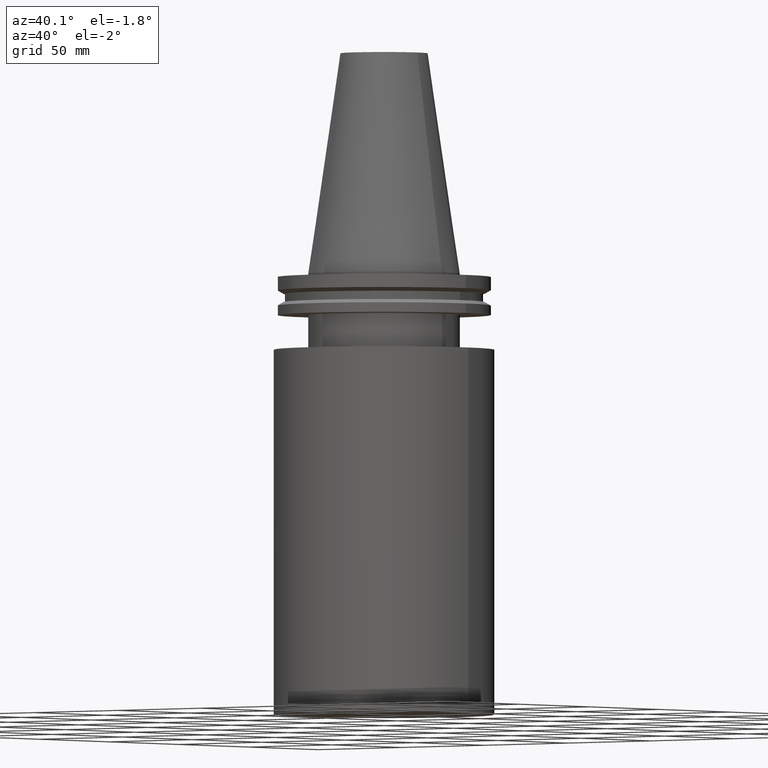
[diagram: clean part render]
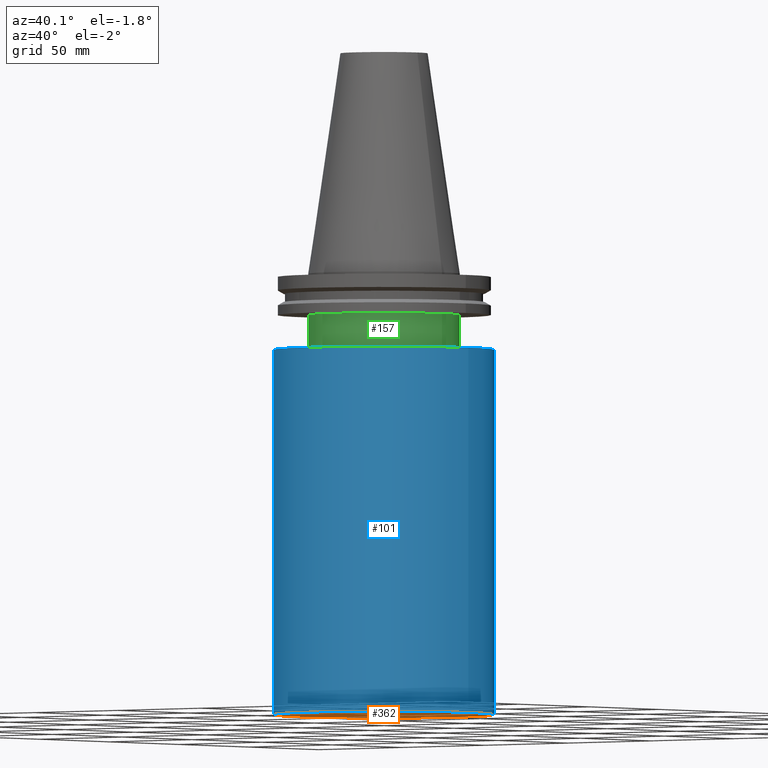
[diagram: same view with three faces highlighted in distinct colors, each labeled with its STEP entity id]
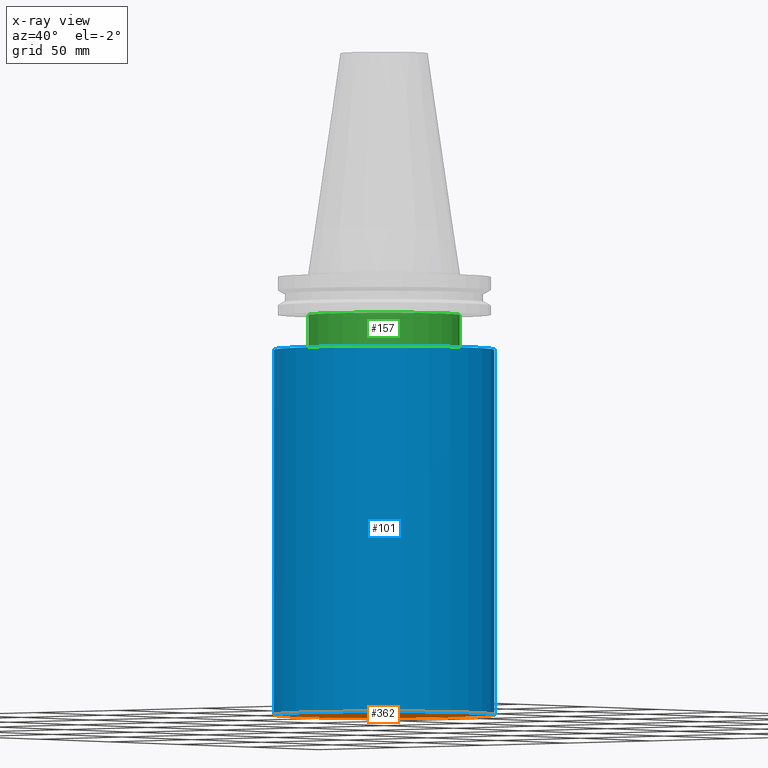
[diagram: x-ray of the same camera — body ghosted, the three highlighted faces saturated]
A machine part, auxiliary view with three faces highlighted in distinct colors.
The next image is the same camera in x-ray (body ghosted, the three faces saturated) — at least one of them is partly hidden behind the body in this view.
Their STEP definitions:

[orange] entity #362 — the highlighted planar face has unit normal (0, -0, 1).
#93 = EDGE_LOOP ( 'NONE', ( #247 ) ) ;
#104 = AXIS2_PLACEMENT_3D ( 'NONE', #243, #361, #202 ) ;
#120 = PLANE ( 'NONE',  #104 ) ;
#147 = AXIS2_PLACEMENT_3D ( 'NONE', #304, #365, #302 ) ;
#158 = VERTEX_POINT ( 'NONE', #372 ) ;
#174 = CIRCLE ( 'NONE', #147, 50.79999999999999716 ) ;
#178 = EDGE_CURVE ( 'NONE', #158, #158, #174, .T. ) ;
#202 = DIRECTION ( 'NONE',  ( 1.000000000000000000, 0.000000000000000000, 0.000000000000000000 ) ) ;
#243 = CARTESIAN_POINT ( 'NONE',  ( 0.000000000000000000, 50.79999999999999716, -203.1999999999999886 ) ) ;
#247 = ORIENTED_EDGE ( 'NONE', *, *, #178, .F. ) ;
#302 = DIRECTION ( 'NONE',  ( 1.000000000000000000, 0.000000000000000000, 0.000000000000000000 ) ) ;
#304 = CARTESIAN_POINT ( 'NONE',  ( 0.000000000000000000, 0.000000000000000000, -203.1999999999999886 ) ) ;
#361 = DIRECTION ( 'NONE',  ( 0.000000000000000000, -0.000000000000000000, 1.000000000000000000 ) ) ;
#362 = ADVANCED_FACE ( 'NONE', ( #393 ), #120, .F. ) ;
#365 = DIRECTION ( 'NONE',  ( -0.000000000000000000, -0.000000000000000000, 1.000000000000000000 ) ) ;
#372 = CARTESIAN_POINT ( 'NONE',  ( 50.79999999999999716, 0.000000000000000000, -203.1999999999999886 ) ) ;
#393 = FACE_OUTER_BOUND ( 'NONE', #93, .T. ) ;

[blue] entity #101 — the highlighted cylindrical surface (bore or boss wall) has radius 50.8 mm, axis along (-0, -0, 1).
#11 = CIRCLE ( 'NONE', #61, 50.79999999999999716 ) ;
#23 = DIRECTION ( 'NONE',  ( 1.000000000000000000, 0.000000000000000000, 0.000000000000000000 ) ) ;
#27 = EDGE_CURVE ( 'NONE', #283, #283, #11, .T. ) ;
#33 = EDGE_LOOP ( 'NONE', ( #190 ) ) ;
#61 = AXIS2_PLACEMENT_3D ( 'NONE', #265, #134, #23 ) ;
#71 = EDGE_LOOP ( 'NONE', ( #347 ) ) ;
#101 = ADVANCED_FACE ( 'NONE', ( #234, #108 ), #357, .T. ) ;
#108 = FACE_OUTER_BOUND ( 'NONE', #71, .T. ) ;
#134 = DIRECTION ( 'NONE',  ( -0.000000000000000000, -0.000000000000000000, 1.000000000000000000 ) ) ;
#147 = AXIS2_PLACEMENT_3D ( 'NONE', #304, #365, #302 ) ;
#158 = VERTEX_POINT ( 'NONE', #372 ) ;
#174 = CIRCLE ( 'NONE', #147, 50.79999999999999716 ) ;
#178 = EDGE_CURVE ( 'NONE', #158, #158, #174, .T. ) ;
#189 = CARTESIAN_POINT ( 'NONE',  ( 50.79999999999999716, 0.000000000000000000, -35.00000000000000000 ) ) ;
#190 = ORIENTED_EDGE ( 'NONE', *, *, #27, .F. ) ;
#192 = DIRECTION ( 'NONE',  ( 1.000000000000000000, 0.000000000000000000, 0.000000000000000000 ) ) ;
#234 = FACE_OUTER_BOUND ( 'NONE', #33, .T. ) ;
#265 = CARTESIAN_POINT ( 'NONE',  ( 0.000000000000000000, 0.000000000000000000, -35.00000000000000000 ) ) ;
#266 = AXIS2_PLACEMENT_3D ( 'NONE', #359, #355, #192 ) ;
#283 = VERTEX_POINT ( 'NONE', #189 ) ;
#302 = DIRECTION ( 'NONE',  ( 1.000000000000000000, 0.000000000000000000, 0.000000000000000000 ) ) ;
#304 = CARTESIAN_POINT ( 'NONE',  ( 0.000000000000000000, 0.000000000000000000, -203.1999999999999886 ) ) ;
#347 = ORIENTED_EDGE ( 'NONE', *, *, #178, .T. ) ;
#355 = DIRECTION ( 'NONE',  ( -0.000000000000000000, -0.000000000000000000, 1.000000000000000000 ) ) ;
#357 = CYLINDRICAL_SURFACE ( 'NONE', #266, 50.79999999999999716 ) ;
#359 = CARTESIAN_POINT ( 'NONE',  ( 0.000000000000000000, 0.000000000000000000, 0.000000000000000000 ) ) ;
#365 = DIRECTION ( 'NONE',  ( -0.000000000000000000, -0.000000000000000000, 1.000000000000000000 ) ) ;
#372 = CARTESIAN_POINT ( 'NONE',  ( 50.79999999999999716, 0.000000000000000000, -203.1999999999999886 ) ) ;

[green] entity #157 — the highlighted cylindrical surface (bore or boss wall) has radius 34.925 mm, axis along (-0, -0, 1).
#3 = AXIS2_PLACEMENT_3D ( 'NONE', #51, #323, #321 ) ;
#12 = CARTESIAN_POINT ( 'NONE',  ( 34.92499999999999716, 0.000000000000000000, -35.00000000000000000 ) ) ;
#28 = CARTESIAN_POINT ( 'NONE',  ( 0.000000000000000000, 0.000000000000000000, -35.00000000000000000 ) ) ;
#30 = CIRCLE ( 'NONE', #252, 34.92499999999999716 ) ;
#51 = CARTESIAN_POINT ( 'NONE',  ( 0.000000000000000000, 0.000000000000000000, 101.5999999999999943 ) ) ;
#62 = VERTEX_POINT ( 'NONE', #310 ) ;
#69 = EDGE_LOOP ( 'NONE', ( #126 ) ) ;
#72 = EDGE_CURVE ( 'NONE', #62, #62, #289, .T. ) ;
#75 = CARTESIAN_POINT ( 'NONE',  ( 0.000000000000000000, 0.000000000000000000, -19.04999999999999716 ) ) ;
#100 = EDGE_LOOP ( 'NONE', ( #245 ) ) ;
#112 = FACE_OUTER_BOUND ( 'NONE', #69, .T. ) ;
#126 = ORIENTED_EDGE ( 'NONE', *, *, #72, .F. ) ;
#138 = DIRECTION ( 'NONE',  ( 1.000000000000000000, 0.000000000000000000, 0.000000000000000000 ) ) ;
#157 = ADVANCED_FACE ( 'NONE', ( #112, #228 ), #236, .T. ) ;
#165 = DIRECTION ( 'NONE',  ( -0.000000000000000000, -0.000000000000000000, 1.000000000000000000 ) ) ;
#203 = DIRECTION ( 'NONE',  ( 1.000000000000000000, 0.000000000000000000, 0.000000000000000000 ) ) ;
#209 = DIRECTION ( 'NONE',  ( -0.000000000000000000, -0.000000000000000000, 1.000000000000000000 ) ) ;
#228 = FACE_OUTER_BOUND ( 'NONE', #100, .T. ) ;
#232 = EDGE_CURVE ( 'NONE', #280, #280, #30, .T. ) ;
#236 = CYLINDRICAL_SURFACE ( 'NONE', #3, 34.92499999999999716 ) ;
#245 = ORIENTED_EDGE ( 'NONE', *, *, #232, .T. ) ;
#252 = AXIS2_PLACEMENT_3D ( 'NONE', #28, #209, #203 ) ;
#280 = VERTEX_POINT ( 'NONE', #12 ) ;
#289 = CIRCLE ( 'NONE', #306, 34.92499999999999716 ) ;
#306 = AXIS2_PLACEMENT_3D ( 'NONE', #75, #165, #138 ) ;
#310 = CARTESIAN_POINT ( 'NONE',  ( 34.92499999999999716, 0.000000000000000000, -19.04999999999999716 ) ) ;
#321 = DIRECTION ( 'NONE',  ( 1.000000000000000000, 0.000000000000000000, 0.000000000000000000 ) ) ;
#323 = DIRECTION ( 'NONE',  ( -0.000000000000000000, -0.000000000000000000, 1.000000000000000000 ) ) ;